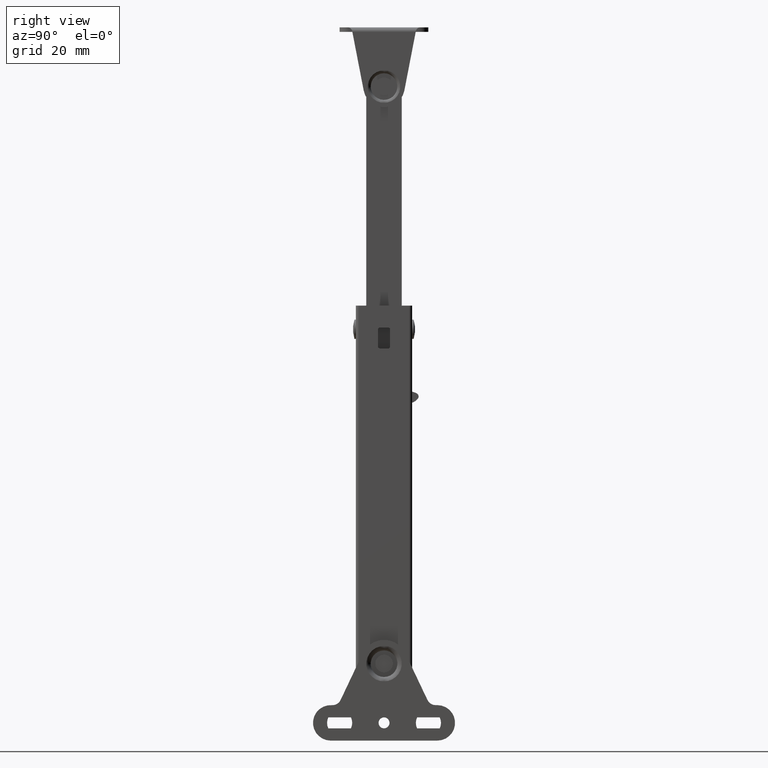
[diagram: clean part render]
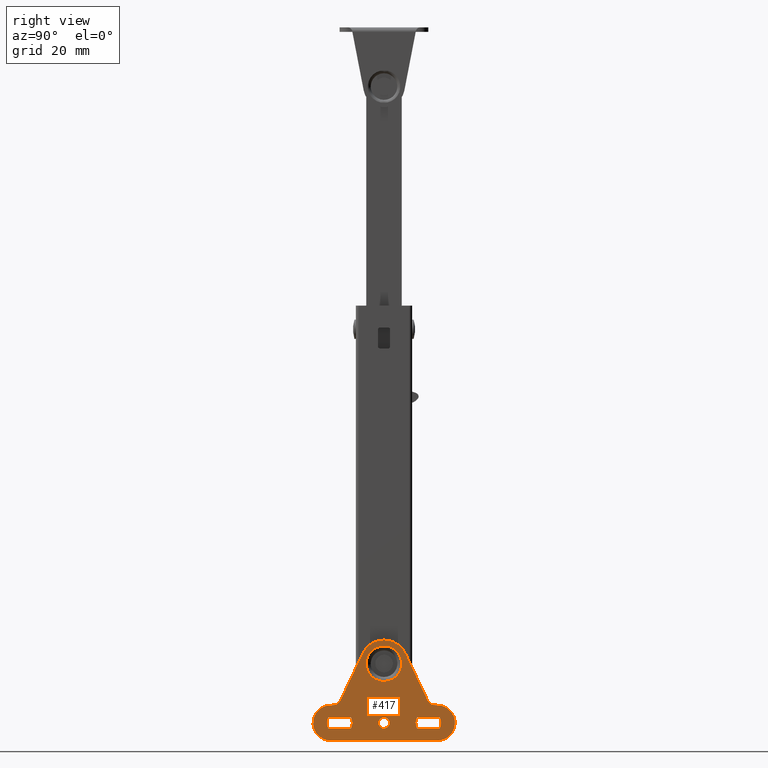
[diagram: same view with one face highlighted and labeled with its STEP entity id]
A machine part, right view. The second image highlights one B-rep face of the part: STEP entity #417.
In plain terms, the highlighted planar face has unit normal (-1, 0, 0).
Its self-contained STEP definition (entity closure, byte-faithful):
#417=ADVANCED_FACE('',(#623,#624,#625,#626,#627),#622,.F.);
#622=PLANE('',#2718);
#623=FACE_OUTER_BOUND('',#2719,.T.);
#624=FACE_BOUND('',#2720,.T.);
#625=FACE_BOUND('',#2721,.T.);
#626=FACE_BOUND('',#2722,.T.);
#627=FACE_BOUND('',#2723,.T.);
#2715=CARTESIAN_POINT('',(4.00000000000E+00,-2.90215549581E+01,1.14027687298E+01));
#2716=DIRECTION('',(-1.00000000000E+00,0.00000000000E+00,0.00000000000E+00));
#2717=DIRECTION('',(0.00000000000E+00,1.00000000000E+00,0.00000000000E+00));
#2718=AXIS2_PLACEMENT_3D('',#2715,#2716,#2717);
#2719=EDGE_LOOP('',(#4161,#4162,#4163,#4164,#4165,#4166,#4167,#4168,#4169));
#2720=EDGE_LOOP('',(#4170,#4171));
#2721=EDGE_LOOP('',(#4172,#4173,#4174,#4175));
#2722=EDGE_LOOP('',(#4176,#4177,#4178,#4179));
#2723=EDGE_LOOP('',(#4180,#4181));
#4161=ORIENTED_EDGE('',*,*,#5185,.T.);
#4162=ORIENTED_EDGE('',*,*,#5186,.T.);
#4163=ORIENTED_EDGE('',*,*,#5187,.F.);
#4164=ORIENTED_EDGE('',*,*,#5188,.T.);
#4165=ORIENTED_EDGE('',*,*,#5189,.T.);
#4166=ORIENTED_EDGE('',*,*,#5190,.T.);
#4167=ORIENTED_EDGE('',*,*,#5191,.T.);
#4168=ORIENTED_EDGE('',*,*,#5192,.F.);
#4169=ORIENTED_EDGE('',*,*,#5193,.T.);
#4170=ORIENTED_EDGE('',*,*,#5194,.T.);
#4171=ORIENTED_EDGE('',*,*,#5195,.T.);
#4172=ORIENTED_EDGE('',*,*,#5196,.T.);
#4173=ORIENTED_EDGE('',*,*,#5197,.F.);
#4174=ORIENTED_EDGE('',*,*,#5198,.T.);
#4175=ORIENTED_EDGE('',*,*,#5199,.F.);
#4176=ORIENTED_EDGE('',*,*,#5200,.T.);
#4177=ORIENTED_EDGE('',*,*,#5201,.F.);
#4178=ORIENTED_EDGE('',*,*,#5202,.T.);
#4179=ORIENTED_EDGE('',*,*,#5203,.F.);
#4180=ORIENTED_EDGE('',*,*,#5204,.F.);
#4181=ORIENTED_EDGE('',*,*,#5205,.F.);
#5185=EDGE_CURVE('',#5697,#5698,#5699,.T.);
#5186=EDGE_CURVE('',#5698,#5705,#5706,.T.);
#5187=EDGE_CURVE('',#5712,#5705,#5713,.T.);
#5188=EDGE_CURVE('',#5712,#5719,#5720,.T.);
#5189=EDGE_CURVE('',#5719,#5726,#5727,.T.);
#5190=EDGE_CURVE('',#5726,#5733,#5734,.T.);
#5191=EDGE_CURVE('',#5733,#5740,#5741,.T.);
#5192=EDGE_CURVE('',#5747,#5740,#5748,.T.);
#5193=EDGE_CURVE('',#5747,#5697,#5754,.T.);
#5194=EDGE_CURVE('',#5760,#5761,#5762,.T.);
#5195=EDGE_CURVE('',#5761,#5760,#5768,.T.);
#5196=EDGE_CURVE('',#5774,#5775,#5776,.T.);
#5197=EDGE_CURVE('',#5782,#5775,#5783,.T.);
#5198=EDGE_CURVE('',#5782,#5789,#5790,.T.);
#5199=EDGE_CURVE('',#5774,#5789,#5796,.T.);
#5200=EDGE_CURVE('',#5802,#5803,#5804,.T.);
#5201=EDGE_CURVE('',#5810,#5803,#5811,.T.);
#5202=EDGE_CURVE('',#5810,#5817,#5818,.T.);
#5203=EDGE_CURVE('',#5802,#5817,#5824,.T.);
#5204=EDGE_CURVE('',#5830,#5831,#5832,.T.);
#5205=EDGE_CURVE('',#5831,#5830,#5838,.T.);
#5697=VERTEX_POINT('',#9105);
#5698=VERTEX_POINT('',#9106);
#5699=CIRCLE('',#9110,8.00000000000E+00);
#5705=VERTEX_POINT('',#9111);
#5706=LINE('',#9112,#9113);
#5712=VERTEX_POINT('',#9115);
#5713=CIRCLE('',#9119,3.00000000000E+00);
#5719=VERTEX_POINT('',#9120);
#5720=CIRCLE('',#9124,6.00000000000E+00);
#5726=VERTEX_POINT('',#9125);
#5727=LINE('',#9126,#9127);
#5733=VERTEX_POINT('',#9129);
#5734=CIRCLE('',#9133,6.00000000000E+00);
#5740=VERTEX_POINT('',#9134);
#5741=LINE('',#9135,#9136);
#5747=VERTEX_POINT('',#9138);
#5748=CIRCLE('',#9142,3.00000000000E+00);
#5754=LINE('',#9143,#9144);
#5760=VERTEX_POINT('',#9146);
#5761=VERTEX_POINT('',#9147);
#5762=CIRCLE('',#9151,6.00000000000E+00);
#5768=CIRCLE('',#9155,6.00000000000E+00);
#5774=VERTEX_POINT('',#9156);
#5775=VERTEX_POINT('',#9157);
#5776=LINE('',#9158,#9159);
#5782=VERTEX_POINT('',#9161);
#5783=CIRCLE('',#9165,4.25000000000E+00);
#5789=VERTEX_POINT('',#9166);
#5790=LINE('',#9167,#9168);
#5796=CIRCLE('',#9173,4.25000000000E+00);
#5802=VERTEX_POINT('',#9174);
#5803=VERTEX_POINT('',#9175);
#5804=LINE('',#9176,#9177);
#5810=VERTEX_POINT('',#9179);
#5811=CIRCLE('',#9183,4.25000000000E+00);
#5817=VERTEX_POINT('',#9184);
#5818=LINE('',#9185,#9186);
#5824=CIRCLE('',#9191,4.25000000000E+00);
#5830=VERTEX_POINT('',#9192);
#5831=VERTEX_POINT('',#9193);
#5832=CIRCLE('',#9197,1.85000000000E+00);
#5838=CIRCLE('',#9201,1.85000000000E+00);
#9105=CARTESIAN_POINT('',(4.00000000000E+00,7.23069801154E+00,3.42301128627E+00));
#9106=CARTESIAN_POINT('',(4.00000000000E+00,-7.22729400000E+00,3.43020700000E+00));
#9107=CARTESIAN_POINT('',(4.00000000000E+00,0.00000000000E+00,0.00000000000E+00));
#9108=DIRECTION('',(1.00000000000E+00,0.00000000000E+00,-0.00000000000E+00));
#9109=DIRECTION('',(-0.00000000000E+00,-0.00000000000E+00,-1.00000000000E+00));
#9110=AXIS2_PLACEMENT_3D('',#9107,#9108,#9109);
#9111=CARTESIAN_POINT('',(4.00000000000E+00,-1.46959830000E+01,-1.23059390000E+01));
#9112=CARTESIAN_POINT('',(4.00000000000E+00,-7.22729400000E+00,3.43020700000E+00));
#9113=VECTOR('',#9114,1.74185994360E+01);
#9114=DIRECTION('',(0.00000000000E+00,-4.28776666427E-01,-9.03410521484E-01));
#9115=CARTESIAN_POINT('',(4.00000000000E+00,-1.76041459581E+01,-1.40130706993E+01));
#9116=CARTESIAN_POINT('',(4.00000000000E+00,-1.74062190000E+01,-1.10196070000E+01));
#9117=DIRECTION('',(1.00000000000E+00,0.00000000000E+00,-0.00000000000E+00));
#9118=DIRECTION('',(-0.00000000000E+00,9.03410534974E-01,-4.28776638003E-01));
#9119=AXIS2_PLACEMENT_3D('',#9116,#9117,#9118);
#9120=CARTESIAN_POINT('',(4.00000000000E+00,-1.79999998953E+01,-2.60000000000E+01));
#9121=CARTESIAN_POINT('',(4.00000000000E+00,-1.80000000000E+01,-2.00000000000E+01));
#9122=DIRECTION('',(1.00000000000E+00,0.00000000000E+00,-0.00000000000E+00));
#9123=DIRECTION('',(-0.00000000000E+00,1.74532921449E-08,-1.00000000000E+00));
#9124=AXIS2_PLACEMENT_3D('',#9121,#9122,#9123);
#9125=CARTESIAN_POINT('',(4.00000000000E+00,1.80000000000E+01,-2.60000000000E+01));
#9126=CARTESIAN_POINT('',(4.00000000000E+00,-1.79999998953E+01,-2.60000000000E+01));
#9127=VECTOR('',#9128,3.59999998953E+01);
#9128=DIRECTION('',(0.00000000000E+00,1.00000000000E+00,0.00000000000E+00));
#9129=CARTESIAN_POINT('',(4.00000000000E+00,1.79999996858E+01,-1.40000000000E+01));
#9130=CARTESIAN_POINT('',(4.00000000000E+00,1.80000000000E+01,-2.00000000000E+01));
#9131=DIRECTION('',(1.00000000000E+00,0.00000000000E+00,-0.00000000000E+00));
#9132=DIRECTION('',(-0.00000000000E+00,-0.00000000000E+00,-1.00000000000E+00));
#9133=AXIS2_PLACEMENT_3D('',#9130,#9131,#9132);
#9134=CARTESIAN_POINT('',(4.00000000000E+00,1.73968820000E+01,-1.40000000000E+01));
#9135=CARTESIAN_POINT('',(4.00000000000E+00,1.79999996858E+01,-1.40000000000E+01));
#9136=VECTOR('',#9137,6.03117685841E-01);
#9137=DIRECTION('',(0.00000000000E+00,-1.00000000000E+00,0.00000000000E+00));
#9138=CARTESIAN_POINT('',(4.00000000000E+00,1.46923433800E+01,-1.22982568516E+01));
#9139=CARTESIAN_POINT('',(4.00000000000E+00,1.73968820000E+01,-1.10000000000E+01));
#9140=DIRECTION('',(1.00000000000E+00,0.00000000000E+00,-0.00000000000E+00));
#9141=DIRECTION('',(-0.00000000000E+00,-0.00000000000E+00,-1.00000000000E+00));
#9142=AXIS2_PLACEMENT_3D('',#9139,#9140,#9141);
#9143=CARTESIAN_POINT('',(4.00000000000E+00,1.46923433800E+01,-1.22982568516E+01));
#9144=VECTOR('',#9145,1.74021384740E+01);
#9145=DIRECTION('',(0.00000000000E+00,-4.28777496489E-01,9.03410127519E-01));
#9146=CARTESIAN_POINT('',(4.00000000000E+00,0.00000000000E+00,6.00000000000E+00));
#9147=CARTESIAN_POINT('',(4.00000000000E+00,-2.96059473233E-16,-6.00000000000E+00));
#9148=CARTESIAN_POINT('',(4.00000000000E+00,0.00000000000E+00,0.00000000000E+00));
#9149=DIRECTION('',(-1.00000000000E+00,0.00000000000E+00,0.00000000000E+00));
#9150=DIRECTION('',(0.00000000000E+00,-1.22460635382E-16,1.00000000000E+00));
#9151=AXIS2_PLACEMENT_3D('',#9148,#9149,#9150);
#9152=CARTESIAN_POINT('',(4.00000000000E+00,0.00000000000E+00,0.00000000000E+00));
#9153=DIRECTION('',(-1.00000000000E+00,0.00000000000E+00,0.00000000000E+00));
#9154=DIRECTION('',(0.00000000000E+00,-1.22460635382E-16,1.00000000000E+00));
#9155=AXIS2_PLACEMENT_3D('',#9152,#9153,#9154);
#9156=CARTESIAN_POINT('',(4.00000000000E+00,1.88262296455E+01,-2.18499910000E+01));
#9157=CARTESIAN_POINT('',(4.00000000000E+00,1.11737703545E+01,-2.18499910000E+01));
#9158=CARTESIAN_POINT('',(4.00000000000E+00,1.88262296455E+01,-2.18499910000E+01));
#9159=VECTOR('',#9160,7.65245929095E+00);
#9160=DIRECTION('',(0.00000000000E+00,-1.00000000000E+00,0.00000000000E+00));
#9161=CARTESIAN_POINT('',(4.00000000000E+00,1.11737747863E+01,-1.81499998341E+01));
#9162=CARTESIAN_POINT('',(4.00000000000E+00,1.50000000000E+01,-2.00000000000E+01));
#9163=DIRECTION('',(1.00000000000E+00,0.00000000000E+00,-0.00000000000E+00));
#9164=DIRECTION('',(-0.00000000000E+00,-0.00000000000E+00,-1.00000000000E+00));
#9165=AXIS2_PLACEMENT_3D('',#9162,#9163,#9164);
#9166=CARTESIAN_POINT('',(4.00000000000E+00,1.88262233978E+01,-1.81499960784E+01));
#9167=CARTESIAN_POINT('',(4.00000000000E+00,1.11737747863E+01,-1.81499940000E+01));
#9168=VECTOR('',#9169,7.65244861155E+00);
#9169=DIRECTION('',(0.00000000000E+00,1.00000000000E+00,0.00000000000E+00));
#9170=CARTESIAN_POINT('',(4.00000000000E+00,1.50000000000E+01,-2.00000000000E+01));
#9171=DIRECTION('',(1.00000000000E+00,0.00000000000E+00,-0.00000000000E+00));
#9172=DIRECTION('',(-0.00000000000E+00,-0.00000000000E+00,-1.00000000000E+00));
#9173=AXIS2_PLACEMENT_3D('',#9170,#9171,#9172);
#9174=CARTESIAN_POINT('',(4.00000000000E+00,-1.88262252137E+01,-1.81499998341E+01));
#9175=CARTESIAN_POINT('',(4.00000000000E+00,-1.11737747217E+01,-1.81499999676E+01));
#9176=CARTESIAN_POINT('',(4.00000000000E+00,-1.88262252137E+01,-1.81499940000E+01));
#9177=VECTOR('',#9178,7.65245049201E+00);
#9178=DIRECTION('',(0.00000000000E+00,1.00000000000E+00,0.00000000000E+00));
#9179=CARTESIAN_POINT('',(4.00000000000E+00,-1.11737703545E+01,-2.18499910000E+01));
#9180=CARTESIAN_POINT('',(4.00000000000E+00,-1.50000000000E+01,-2.00000000000E+01));
#9181=DIRECTION('',(1.00000000000E+00,0.00000000000E+00,-0.00000000000E+00));
#9182=DIRECTION('',(-0.00000000000E+00,-0.00000000000E+00,-1.00000000000E+00));
#9183=AXIS2_PLACEMENT_3D('',#9180,#9181,#9182);
#9184=CARTESIAN_POINT('',(4.00000000000E+00,-1.88262296455E+01,-2.18499910000E+01));
#9185=CARTESIAN_POINT('',(4.00000000000E+00,-1.11737703545E+01,-2.18499910000E+01));
#9186=VECTOR('',#9187,7.65245929095E+00);
#9187=DIRECTION('',(0.00000000000E+00,-1.00000000000E+00,0.00000000000E+00));
#9188=CARTESIAN_POINT('',(4.00000000000E+00,-1.50000000000E+01,-2.00000000000E+01));
#9189=DIRECTION('',(1.00000000000E+00,0.00000000000E+00,-0.00000000000E+00));
#9190=DIRECTION('',(-0.00000000000E+00,-0.00000000000E+00,-1.00000000000E+00));
#9191=AXIS2_PLACEMENT_3D('',#9188,#9189,#9190);
#9192=CARTESIAN_POINT('',(4.00000000000E+00,-4.44089209850E-16,-2.18500000000E+01));
#9193=CARTESIAN_POINT('',(4.00000000000E+00,0.00000000000E+00,-1.81500000000E+01));
#9194=CARTESIAN_POINT('',(4.00000000000E+00,0.00000000000E+00,-2.00000000000E+01));
#9195=DIRECTION('',(1.00000000000E+00,0.00000000000E+00,-0.00000000000E+00));
#9196=DIRECTION('',(0.00000000000E+00,-1.22460635382E-16,1.00000000000E+00));
#9197=AXIS2_PLACEMENT_3D('',#9194,#9195,#9196);
#9198=CARTESIAN_POINT('',(4.00000000000E+00,0.00000000000E+00,-2.00000000000E+01));
#9199=DIRECTION('',(1.00000000000E+00,0.00000000000E+00,-0.00000000000E+00));
#9200=DIRECTION('',(0.00000000000E+00,-1.22460635382E-16,1.00000000000E+00));
#9201=AXIS2_PLACEMENT_3D('',#9198,#9199,#9200);